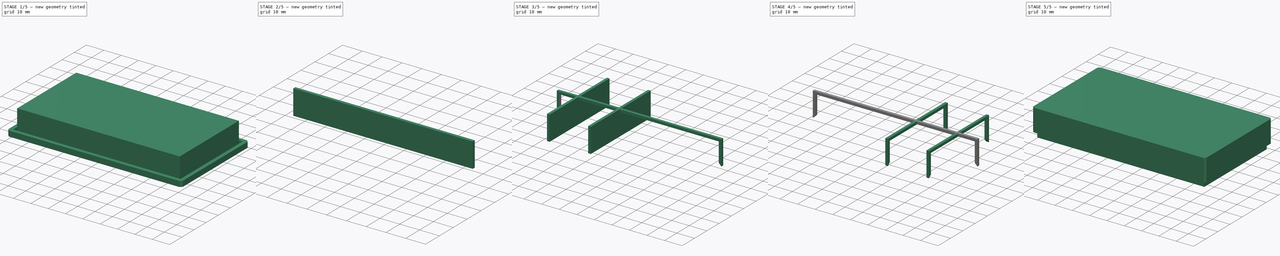
[diagram: build sequence overview — one tinted view per stage of 5, left to right]
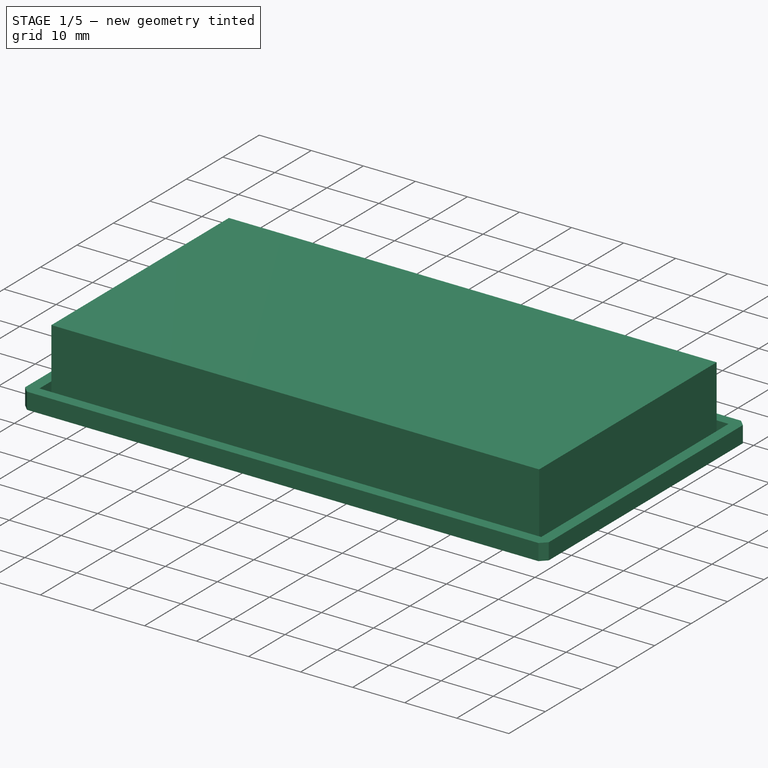
[diagram: stage 1 of 5 — iso view after this stage's code; geometry added in this stage tinted green]
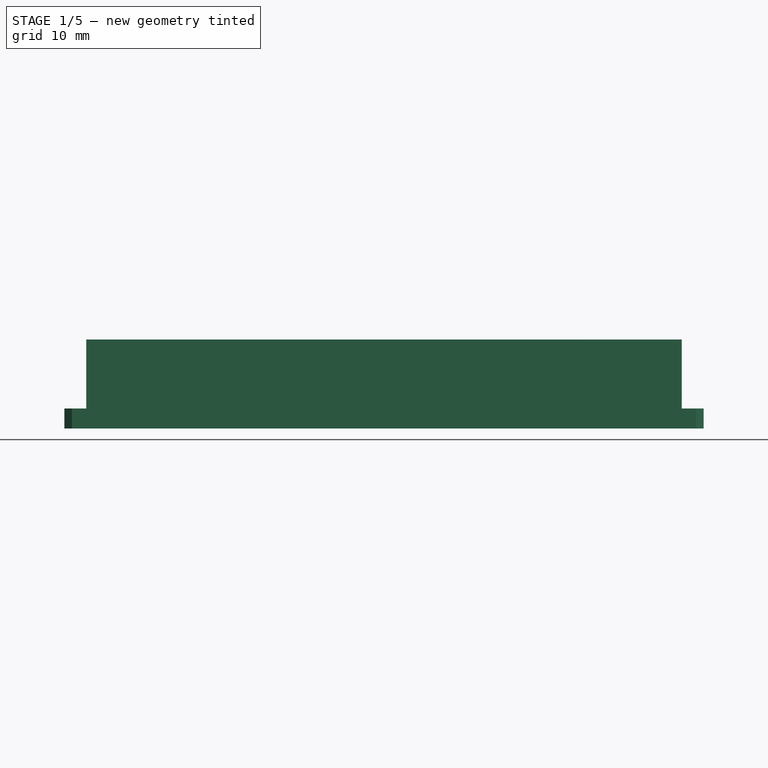
[diagram: stage 1 of 5 — front view after this stage's code; geometry added in this stage tinted green]
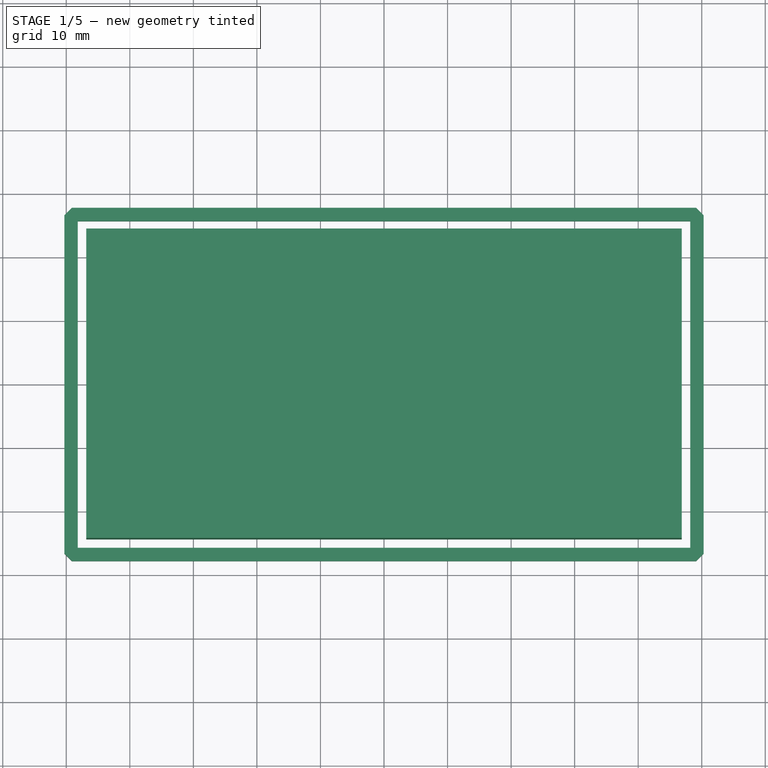
[diagram: stage 1 of 5 — top view after this stage's code; geometry added in this stage tinted green]
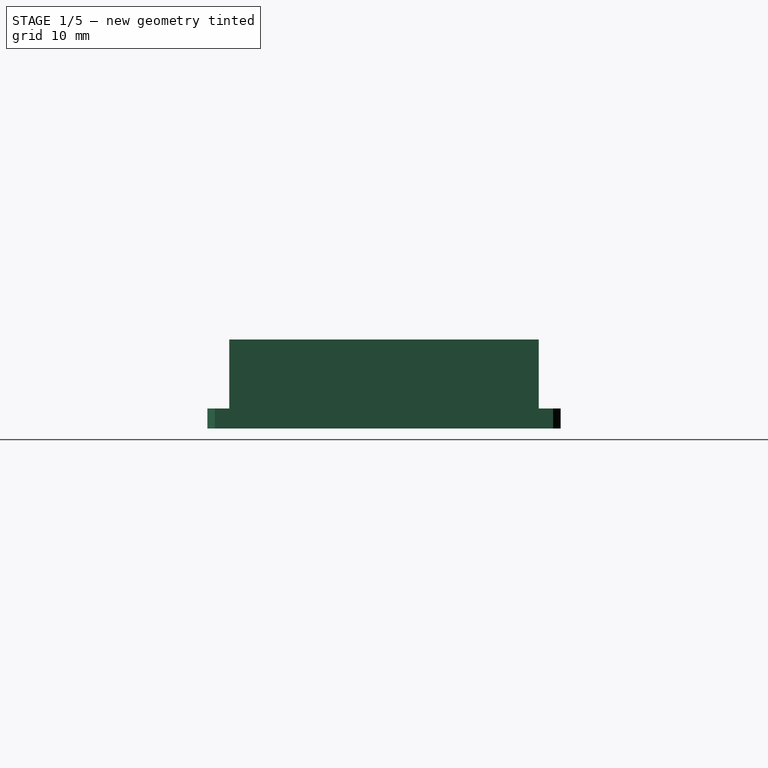
[diagram: stage 1 of 5 — right view after this stage's code; geometry added in this stage tinted green]
FCSTD DOCUMENT  (FreeCAD 0.20R29410 (Git))
Label: ShellB
License: All rights reserved
LicenseURL: http://en.wikipedia.org/wiki/All_rights_reserved
objects: Part::Extrusion×7, Sketcher::SketchObject×6, Part::Cut×4, Part::Fuse×3, Part::Chamfer×2, Part::Feature×1, PartDesign::SubShapeBinder×1, Part::Mirroring×1, PartDesign::CoordinateSystem×1, App::Part×1
note: 26 computed .brp shape members not serialized (recipe doc carries the construction recipe); baked Part::Feature solids carry a one-line shape summary decoded from their .brp
EXTERNAL_REF file=ShellA.FCStd obj=Body

FEATURE [Part::Feature] Face
  shape: bbox 100 x 55 x 0.002 mm, 1 faces, 0 solids (baked)
FEATURE [Part::Extrusion] Extrude
  Base = -> Face
  Dir = (0,0,1)
  DirMode = 0
  FaceMakerClass = Part::FaceMakerBullseye
  LengthFwd = 16
  LengthRev = 0
  Solid = false
  Symmetric = false
FEATURE [Sketcher::SketchObject] Sketch
  ExternalGeometry = -> [Extrude]
  FullyConstrained = true
  Placement = pos=(0,0,0) rot=(1,0,0;3.14159rad)
  sketch-geometry (5):
    g0: LineSegment StartX=-46.85 StartY=24.35 StartZ=0 EndX=-46.85 EndY=-24.35 EndZ=0
    g1: LineSegment StartX=-46.85 StartY=-24.35 StartZ=0 EndX=46.85 EndY=-24.35 EndZ=0
    g2: LineSegment StartX=46.85 StartY=-24.35 StartZ=0 EndX=46.85 EndY=24.35 EndZ=0
    g3: LineSegment StartX=46.85 StartY=24.35 StartZ=0 EndX=-46.85 EndY=24.35 EndZ=0
    g4: GeomPoint X=0 Y=0 Z=0
  constraints (12):
    c: Coincident(g0,g1)
    c: Coincident(g1,g2)
    c: Coincident(g2,g3)
    c: Coincident(g3,g0)
    c: Horizontal(g1)
    c: Horizontal(g3)
    c: Vertical(g0)
    c: Vertical(g2)
    c: Symmetric(g1,g0,g4)
    c: Coincident(g4,g-1)
    c: DistanceY(g0,g-4) = 3.15
    c: DistanceX(g-3,g0) = 3.15
FEATURE [Sketcher::SketchObject] Sketch001  label="ShellCutHeight"
  ExternalGeometry = -> [Extrude]
  FullyConstrained = true
  Placement = pos=(0,0,0) rot=(1,0,0;1.5708rad)
  sketch-geometry (2):
    g0: LineSegment StartX=0 StartY=0 StartZ=0 EndX=0 EndY=14 EndZ=0
    g1: GeomPoint X=0 Y=16 Z=0
  constraints (5):
    c: Coincident(g0,g-1)
    c: PointOnObject(g0,g-2)
    c: PointOnObject(g1,g-3)
    c: PointOnObject(g1,g-2)
    c: DistanceY(g0,g1) = 2
FEATURE [Part::Extrusion] Extrude001
  Base = -> Sketch
  Dir = (0,-3.1e-15,14)
  DirLink = -> Sketch001 [Edge1]
  DirMode = 1
  FaceMakerClass = Part::FaceMakerBullseye
  LengthFwd = 0
  LengthRev = 0
  Solid = true
  Symmetric = false
FEATURE [PartDesign::SubShapeBinder] Binder
  BindCopyOnChange = 0
  BindMode = 0
  ClaimChildren = false
  Context = -> Part [Binder.]
  Fuse = false
  MakeFace = true
  Offset = 0.3
  OffsetFill = false
  OffsetIntersection = false
  OffsetJoinType = 2
  OffsetOpenResult = false
  PartialLoad = false
  Relative = true
  Support = -> [<external ShellA.FCStd>#Body[Chamfer001.Face40]]
  _Version = 2
FEATURE [Part::Extrusion] Extrude002  label="CutoutEdging"
  Base = -> Binder
  Dir = (0,0,1)
  DirMode = 0
  FaceMakerClass = Part::FaceMakerBullseye
  LengthFwd = 3.15
  LengthRev = 0
  Solid = false
  Symmetric = false
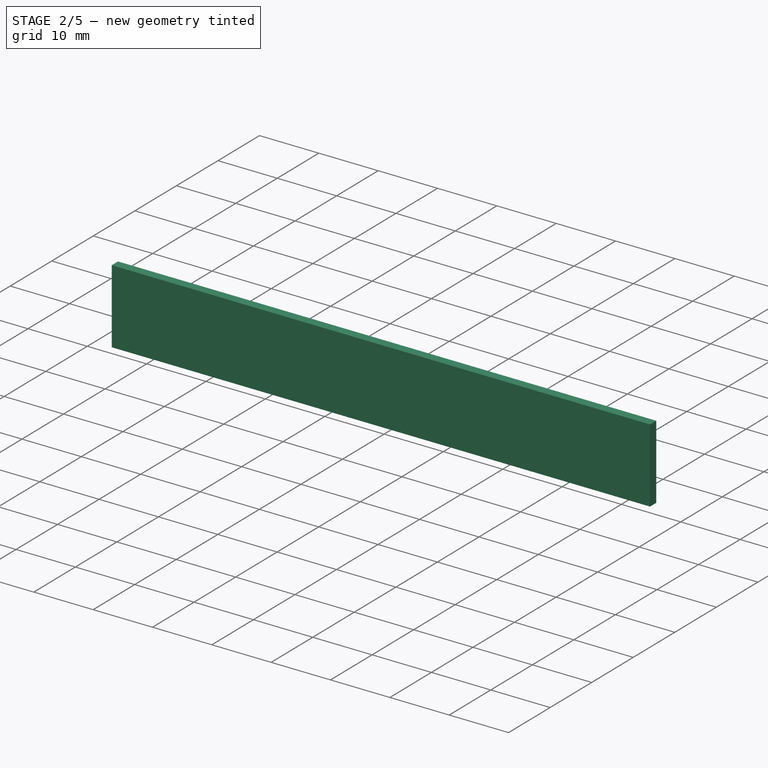
[diagram: stage 2 of 5 — iso view after this stage's code; geometry added in this stage tinted green]
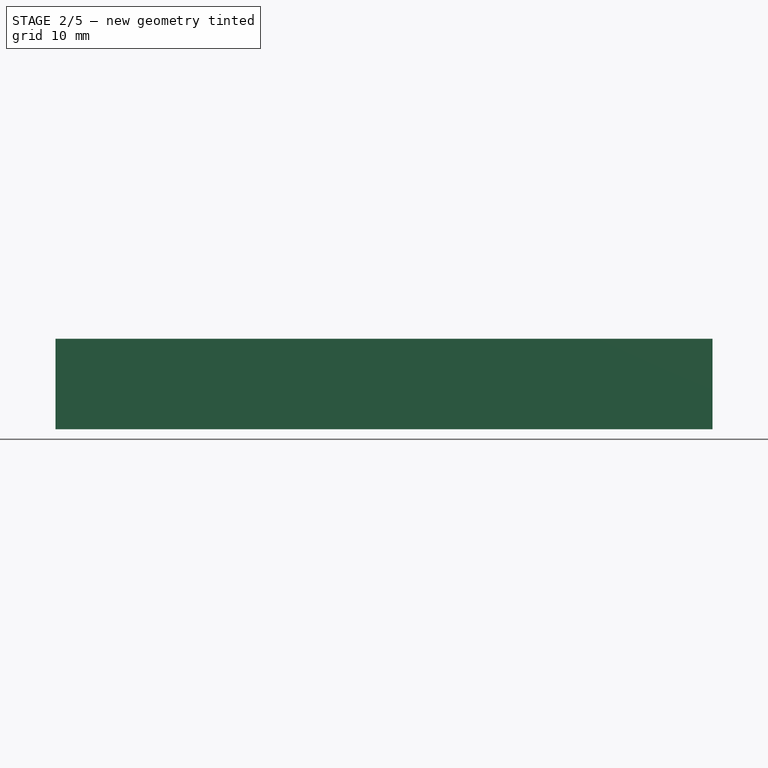
[diagram: stage 2 of 5 — front view after this stage's code; geometry added in this stage tinted green]
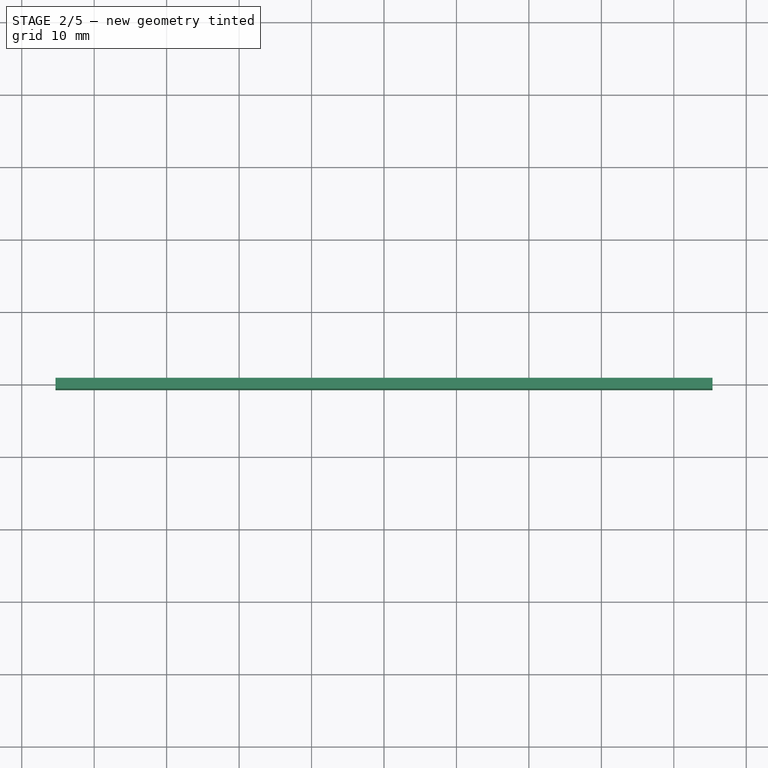
[diagram: stage 2 of 5 — top view after this stage's code; geometry added in this stage tinted green]
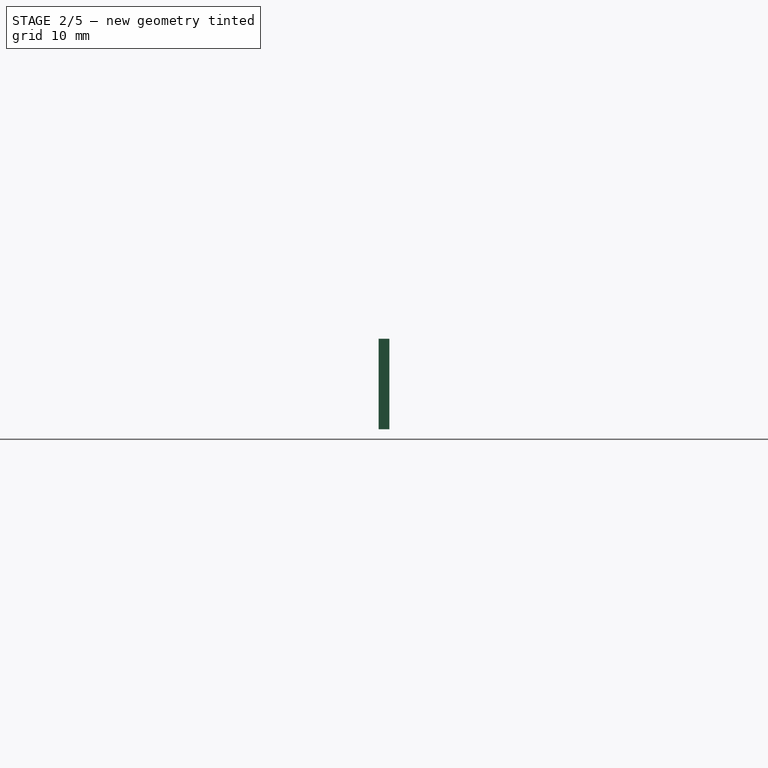
[diagram: stage 2 of 5 — right view after this stage's code; geometry added in this stage tinted green]
FEATURE [Part::Cut] Cut
  Base = -> Extrude
  Tool = -> Extrude001
FEATURE [Part::Cut] Cut001  label="MainShell"
  Base = -> Cut
  Tool = -> Extrude002
FEATURE [Sketcher::SketchObject] Sketch004
  ExternalGeometry = -> [Cut001]
  FullyConstrained = true
  Placement = pos=(0,0,0) rot=(1,0,0;3.14159rad)
  sketch-geometry (5):
    g0: LineSegment StartX=-46.85 StartY=0.75 StartZ=0 EndX=-46.85 EndY=-0.75 EndZ=0
    g1: LineSegment StartX=-46.85 StartY=-0.75 StartZ=0 EndX=46.85 EndY=-0.75 EndZ=0
    g2: LineSegment StartX=46.85 StartY=-0.75 StartZ=0 EndX=46.85 EndY=0.75 EndZ=0
    g3: LineSegment StartX=46.85 StartY=0.75 StartZ=0 EndX=-46.85 EndY=0.75 EndZ=0
    g4: GeomPoint X=0 Y=0 Z=0
  constraints (12):
    c: Coincident(g0,g1)
    c: Coincident(g1,g2)
    c: Coincident(g2,g3)
    c: Coincident(g3,g0)
    c: Horizontal(g1)
    c: Horizontal(g3)
    c: Vertical(g0)
    c: Vertical(g2)
    c: Symmetric(g1,g0,g4)
    c: Coincident(g4,g-1)
    c: PointOnObject(g1,g-4)
    c: DistanceY(g2,g2) = 1.5
FEATURE [Part::Extrusion] Extrude005
  Base = -> Sketch004
  Dir = (0,3.1e-15,14)
  DirLink = -> Sketch001 [Edge1]
  DirMode = 1
  FaceMakerClass = Part::FaceMakerBullseye
  LengthFwd = 0
  LengthRev = 0
  Solid = true
  Symmetric = false
FEATURE [Sketcher::SketchObject] Sketch005
  ExternalGeometry = -> [Extrude005]
  FullyConstrained = true
  Placement = pos=(0,0,0) rot=(1,0,0;3.14159rad)
  sketch-geometry (5):
    g0: LineSegment StartX=-45.35 StartY=0.75 StartZ=0 EndX=-45.35 EndY=-0.75 EndZ=0
    g1: LineSegment StartX=-45.35 StartY=-0.75 StartZ=0 EndX=45.35 EndY=-0.75 EndZ=0
    g2: LineSegment StartX=45.35 StartY=-0.75 StartZ=0 EndX=45.35 EndY=0.75 EndZ=0
    g3: LineSegment StartX=45.35 StartY=0.75 StartZ=0 EndX=-45.35 EndY=0.75 EndZ=0
    g4: GeomPoint X=0 Y=0 Z=0
  constraints (12):
    c: Coincident(g0,g1)
    c: Coincident(g1,g2)
    c: Coincident(g2,g3)
    c: Coincident(g3,g0)
    c: Horizontal(g1)
    c: Horizontal(g3)
    c: Vertical(g0)
    c: Vertical(g2)
    c: Symmetric(g1,g0,g4)
    c: Coincident(g4,g-1)
    c: PointOnObject(g1,g-4)
    c: DistanceX(g2,g-3) = 1.5
FEATURE [Part::Extrusion] Extrude006
  Base = -> Sketch005
  Dir = (0,0,1)
  DirMode = 0
  FaceMakerClass = Part::FaceMakerBullseye
  LengthFwd = 12.5
  LengthRev = 0
  Solid = true
  Symmetric = false
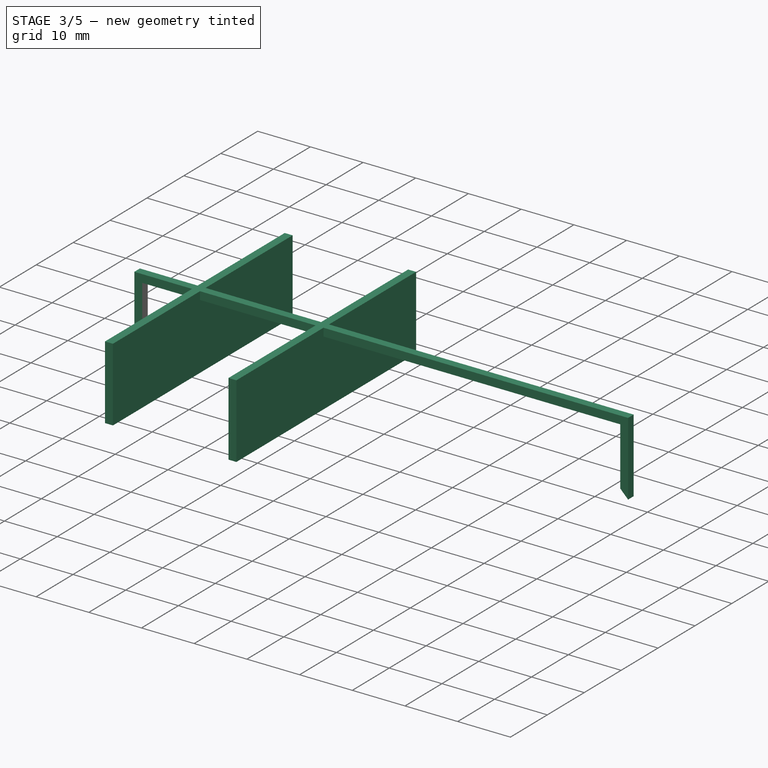
[diagram: stage 3 of 5 — iso view after this stage's code; geometry added in this stage tinted green]
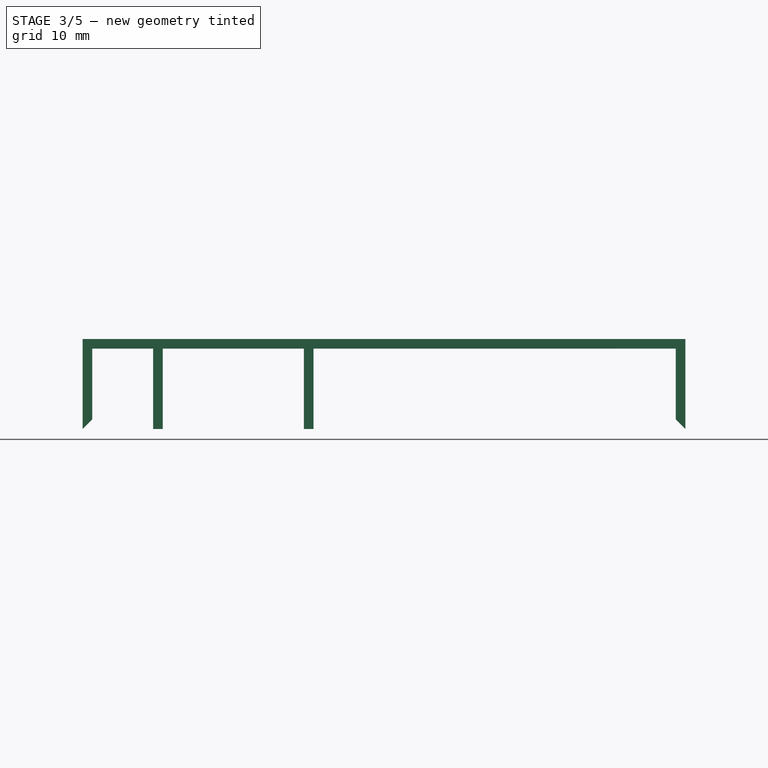
[diagram: stage 3 of 5 — front view after this stage's code; geometry added in this stage tinted green]
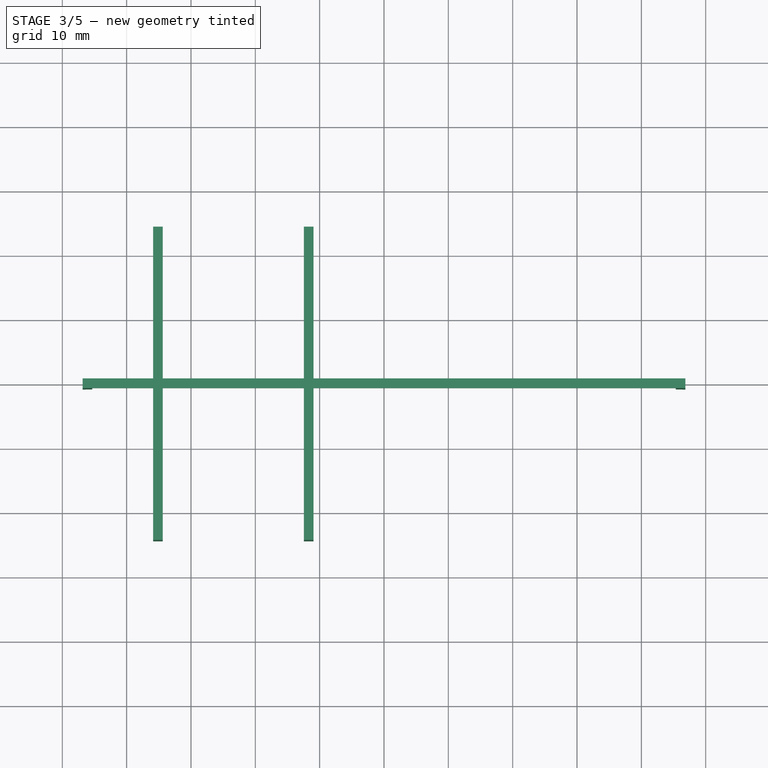
[diagram: stage 3 of 5 — top view after this stage's code; geometry added in this stage tinted green]
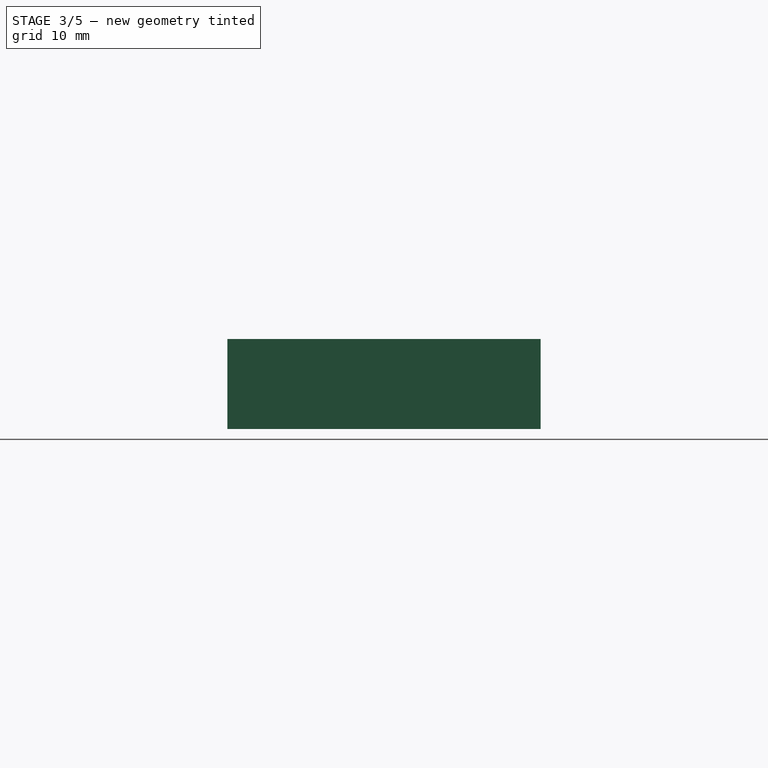
[diagram: stage 3 of 5 — right view after this stage's code; geometry added in this stage tinted green]
FEATURE [Sketcher::SketchObject] Sketch002  label="BaseRails"
  ExternalGeometry = -> [Cut001]
  FullyConstrained = true
  MapMode = 5
  Placement = pos=(0,0,14) rot=(1,0,0;3.14159rad)
  Support = -> [Cut001]
  sketch-geometry (12):
    g0: LineSegment StartX=-35.8875 StartY=24.35 StartZ=0 EndX=-34.3875 EndY=24.35 EndZ=0
    g1: LineSegment StartX=-34.3875 StartY=24.35 StartZ=0 EndX=-34.3875 EndY=-24.35 EndZ=0
    g2: LineSegment StartX=-34.3875 StartY=-24.35 StartZ=0 EndX=-35.8875 EndY=-24.35 EndZ=0
    g3: LineSegment StartX=-35.8875 StartY=-24.35 StartZ=0 EndX=-35.8875 EndY=24.35 EndZ=0
    g4: LineSegment StartX=-12.4625 StartY=24.35 StartZ=0 EndX=-10.9625 EndY=24.35 EndZ=0
    g5: LineSegment StartX=-10.9625 StartY=24.35 StartZ=0 EndX=-10.9625 EndY=-24.35 EndZ=0
    g6: LineSegment StartX=-10.9625 StartY=-24.35 StartZ=0 EndX=-12.4625 EndY=-24.35 EndZ=0
    g7: LineSegment StartX=-12.4625 StartY=-24.35 StartZ=0 EndX=-12.4625 EndY=24.35 EndZ=0
    g8: GeomPoint X=0 Y=24.35 Z=0
    g9: GeomPoint X=-23.425 Y=24.35 Z=0
    g10: GeomPoint X=-35.1375 Y=24.35 Z=0
    g11: GeomPoint X=-11.7125 Y=24.35 Z=0
  constraints (27):
    c: Coincident(g0,g1)
    c: Coincident(g1,g2)
    c: Coincident(g2,g3)
    c: Coincident(g3,g0)
    c: Horizontal(g0)
    c: Horizontal(g2)
    c: Vertical(g1)
    c: Vertical(g3)
    c: PointOnObject(g0,g-3)
    c: PointOnObject(g1,g-4)
    c: Coincident(g4,g5)
    c: Coincident(g5,g6)
    c: Coincident(g6,g7)
    c: Coincident(g7,g4)
    c: Horizontal(g4)
    c: Horizontal(g6)
    c: Vertical(g5)
    c: Vertical(g7)
    c: PointOnObject(g5,g-4)
    c: Equal(g6,g2)
    c: PointOnObject(g8,g-2)
    c: Symmetric(g8,g-3,g9)
    c: Symmetric(g4,g4,g11)
    c: Symmetric(g0,g0,g10)
    c: Symmetric(g-3,g9,g10)
    c: Symmetric(g8,g9,g11)
    c: DistanceX(g0,g0) = 1.5
FEATURE [Part::Extrusion] Extrude003
  Base = -> Sketch002
  Dir = (0,3.1e-15,14)
  DirLink = -> Sketch001 [Edge1]
  DirMode = 1
  FaceMakerClass = Part::FaceMakerBullseye
  LengthFwd = 0
  LengthRev = 0
  Reversed = true
  Solid = true
  Symmetric = false
FEATURE [Part::Cut] Cut003
  Base = -> Extrude005
  Tool = -> Extrude006
FEATURE [Part::Chamfer] Chamfer001  label="LengthRails"
  Base = -> Cut003
  Edges = 2 edges r=1.49: [Edge19,Edge21]
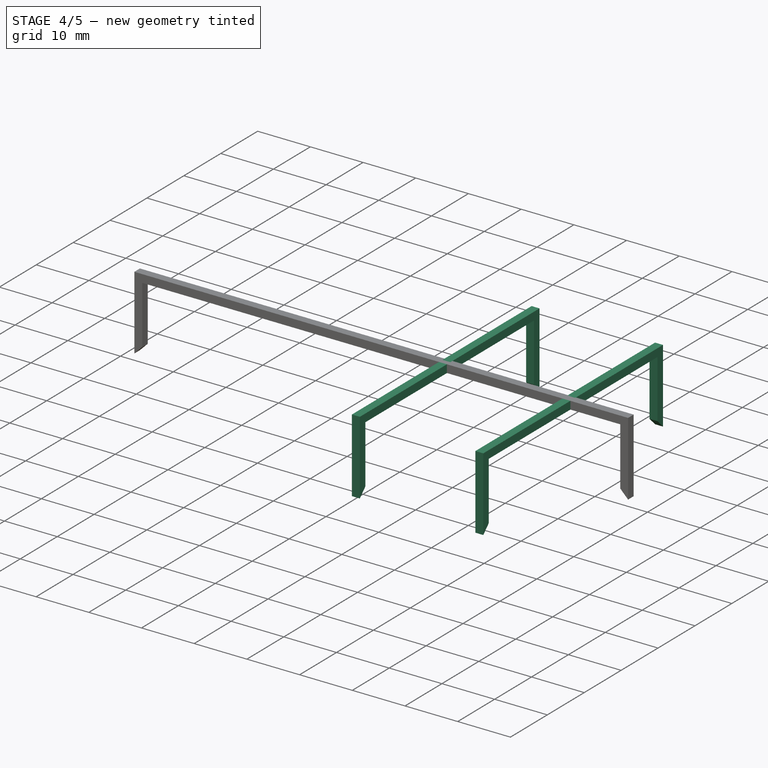
[diagram: stage 4 of 5 — iso view after this stage's code; geometry added in this stage tinted green]
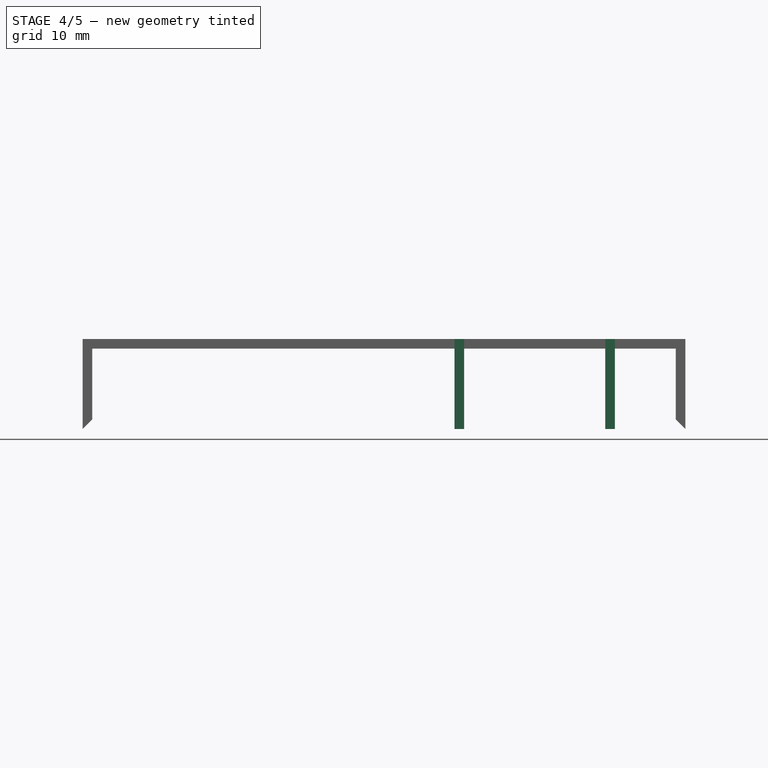
[diagram: stage 4 of 5 — front view after this stage's code; geometry added in this stage tinted green]
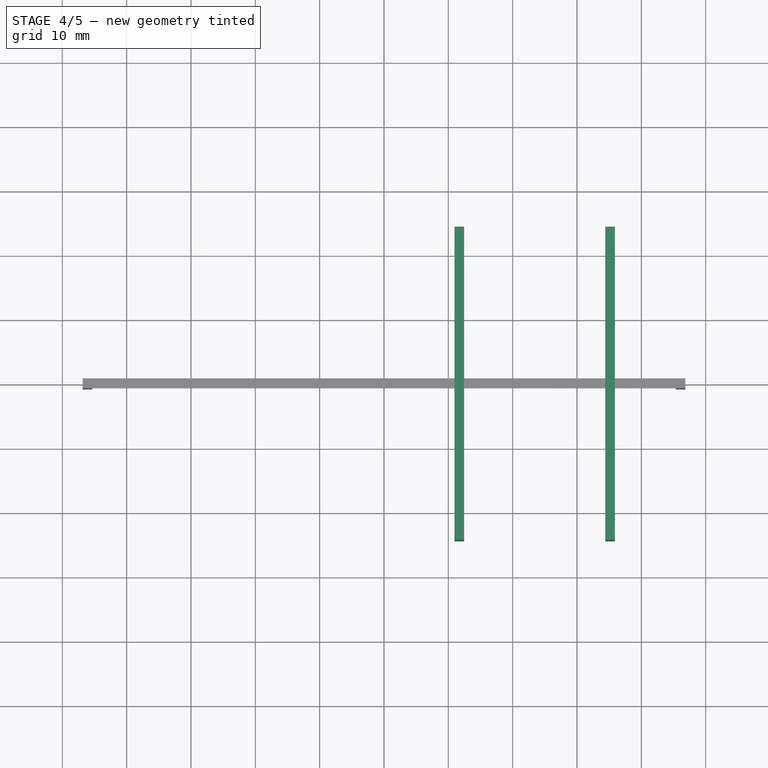
[diagram: stage 4 of 5 — top view after this stage's code; geometry added in this stage tinted green]
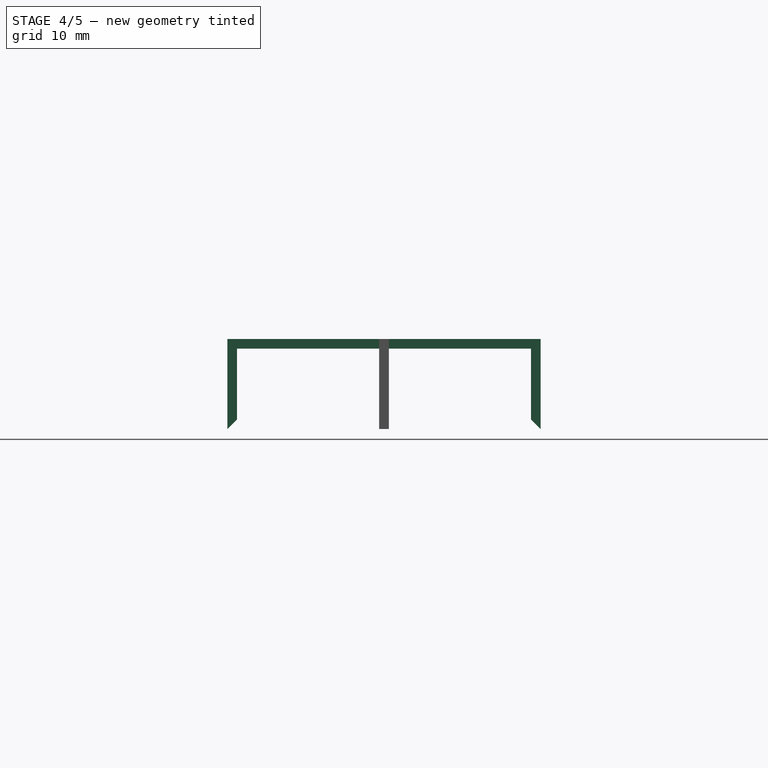
[diagram: stage 4 of 5 — right view after this stage's code; geometry added in this stage tinted green]
FEATURE [Sketcher::SketchObject] Sketch003
  ExternalGeometry = -> [Extrude003]
  FullyConstrained = true
  Placement = pos=(0,0,0) rot=(1,0,0;3.14159rad)
  sketch-geometry (8):
    g0: LineSegment StartX=-35.8875 StartY=22.85 StartZ=0 EndX=-34.3875 EndY=22.85 EndZ=0
    g1: LineSegment StartX=-34.3875 StartY=22.85 StartZ=0 EndX=-34.3875 EndY=-22.85 EndZ=0
    g2: LineSegment StartX=-34.3875 StartY=-22.85 StartZ=0 EndX=-35.8875 EndY=-22.85 EndZ=0
    g3: LineSegment StartX=-35.8875 StartY=-22.85 StartZ=0 EndX=-35.8875 EndY=22.85 EndZ=0
    g4: LineSegment StartX=-12.4625 StartY=22.85 StartZ=0 EndX=-10.9625 EndY=22.85 EndZ=0
    g5: LineSegment StartX=-10.9625 StartY=22.85 StartZ=0 EndX=-10.9625 EndY=-22.85 EndZ=0
    g6: LineSegment StartX=-10.9625 StartY=-22.85 StartZ=0 EndX=-12.4625 EndY=-22.85 EndZ=0
    g7: LineSegment StartX=-12.4625 StartY=-22.85 StartZ=0 EndX=-12.4625 EndY=22.85 EndZ=0
  constraints (23):
    c: Coincident(g0,g1)
    c: Coincident(g1,g2)
    c: Coincident(g2,g3)
    c: Coincident(g3,g0)
    c: Horizontal(g0)
    c: Horizontal(g2)
    c: Vertical(g1)
    c: PointOnObject(g0,g-3)
    c: PointOnObject(g1,g-4)
    c: Symmetric(g2,g0,g-1)
    c: Coincident(g4,g5)
    c: Coincident(g5,g6)
    c: Coincident(g6,g7)
    c: Coincident(g7,g4)
    c: Horizontal(g4)
    c: Horizontal(g6)
    c: Vertical(g5)
    c: Vertical(g7)
    c: PointOnObject(g4,g-5)
    c: PointOnObject(g5,g-6)
    c: Horizontal(g6,g1)
    c: Horizontal(g4,g0)
    c: DistanceY(g0,g-4) = 1.5
FEATURE [Part::Extrusion] Extrude004
  Base = -> Sketch003
  Dir = (0,0,1)
  DirMode = 0
  FaceMakerClass = Part::FaceMakerBullseye
  LengthFwd = 12.5
  LengthRev = 0
  Solid = true
  Symmetric = false
FEATURE [Part::Cut] Cut002  label="RailsLeft"
  Base = -> Extrude003
  Tool = -> Extrude004
FEATURE [Part::Chamfer] Chamfer  label="RailsLeft001"
  Base = -> Cut002
  Edges = 4 edges r=1.49: [Edge20,Edge23,Edge44,Edge47]
FEATURE [Part::Mirroring] Part__Mirroring  label="RailsRight"
  Base = (0,0,0)
  Normal = (1,0,0)
  Source = -> Chamfer
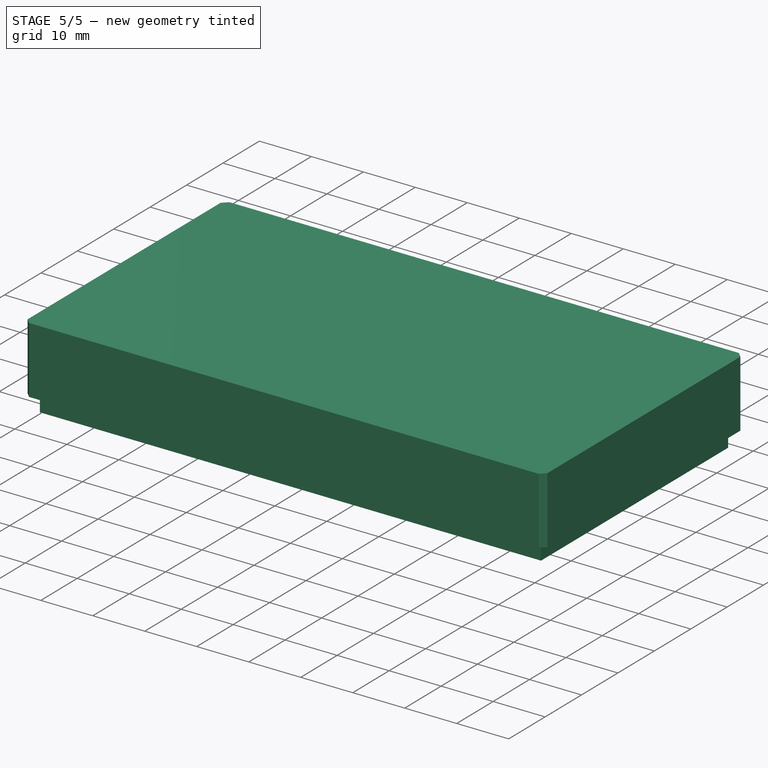
[diagram: stage 5 of 5 — iso view after this stage's code; geometry added in this stage tinted green]
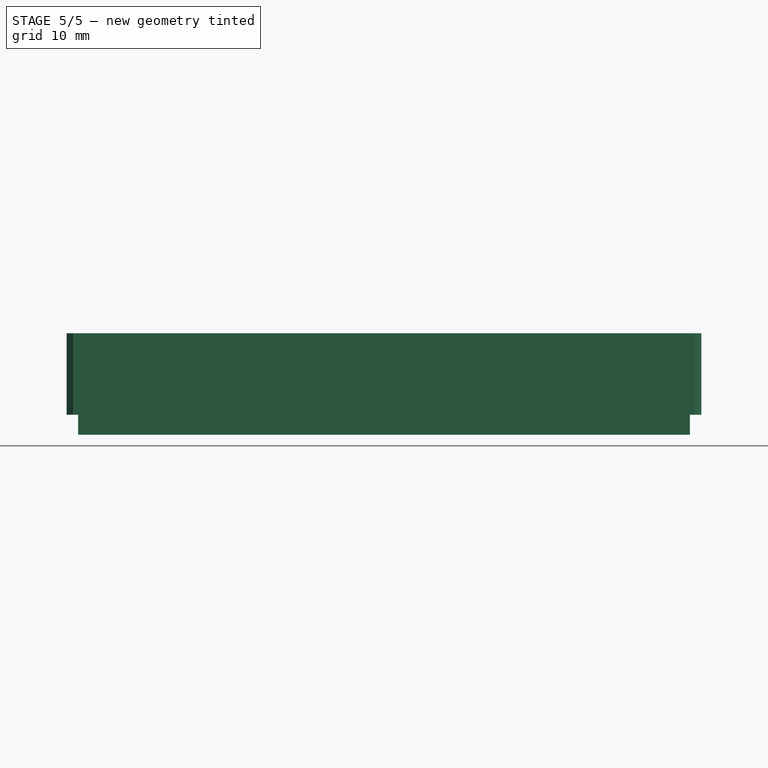
[diagram: stage 5 of 5 — front view after this stage's code; geometry added in this stage tinted green]
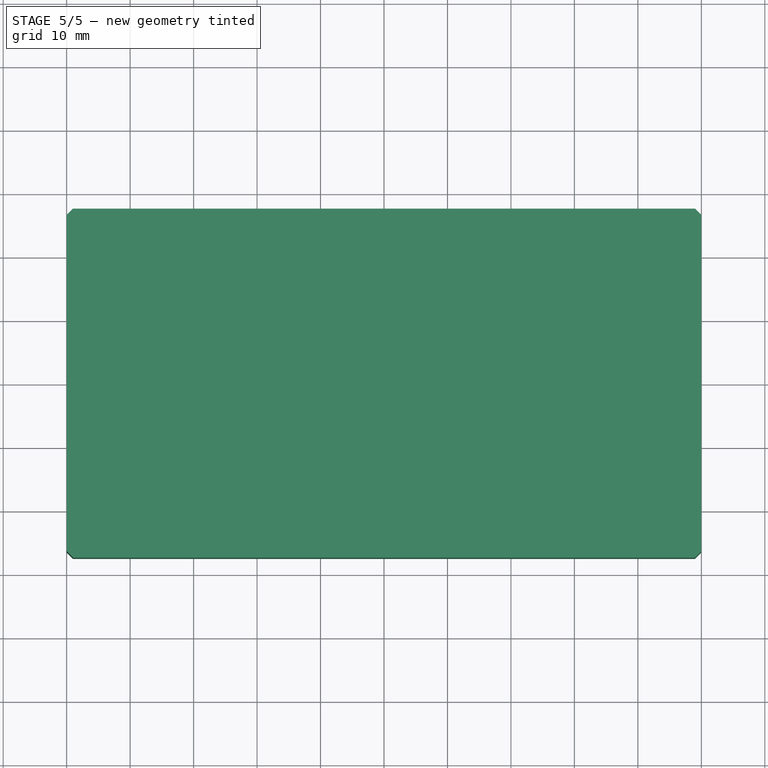
[diagram: stage 5 of 5 — top view after this stage's code; geometry added in this stage tinted green]
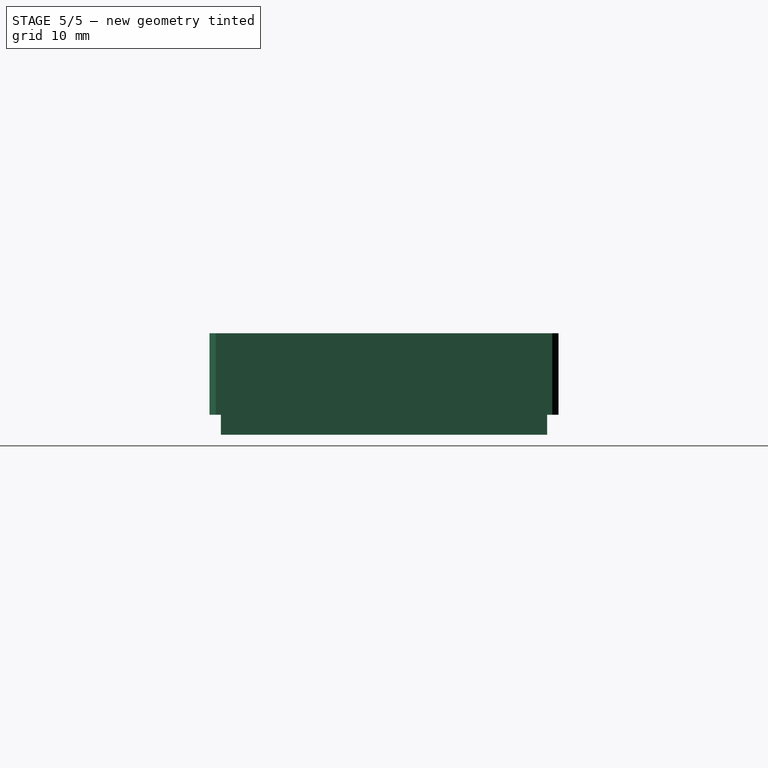
[diagram: stage 5 of 5 — right view after this stage's code; geometry added in this stage tinted green]
FEATURE [Part::Fuse] Fusion  label="WidthRails"
  Base = -> Chamfer
  Tool = -> Part__Mirroring
FEATURE [Part::Fuse] Fusion001  label="Rails"
  Base = -> Fusion
  Tool = -> Chamfer001
FEATURE [Part::Fuse] Fusion002
  Base = -> Cut001
  Refine = true
  Tool = -> Fusion001
FEATURE [PartDesign::CoordinateSystem] ShellB_LCS
  AttacherType = Attacher::AttachEngine3D
FEATURE [App::Part] Part  label="ShellB_Part"
  Group = -> [Sketch004,Extrude002,Cut002,Binder,Sketch001,Extrude003,Cut003,Chamfer001,Extrude001,Extrude004,Fusion,Extrude005,Sketch,Part__Mirroring,Extrude006,Sketch003,Cut001,Chamfer,Sketch005,Cut,Fusion001,Extrude,Sketch002,Face,Fusion002,ShellB_LCS]
  Origin = -> Origin
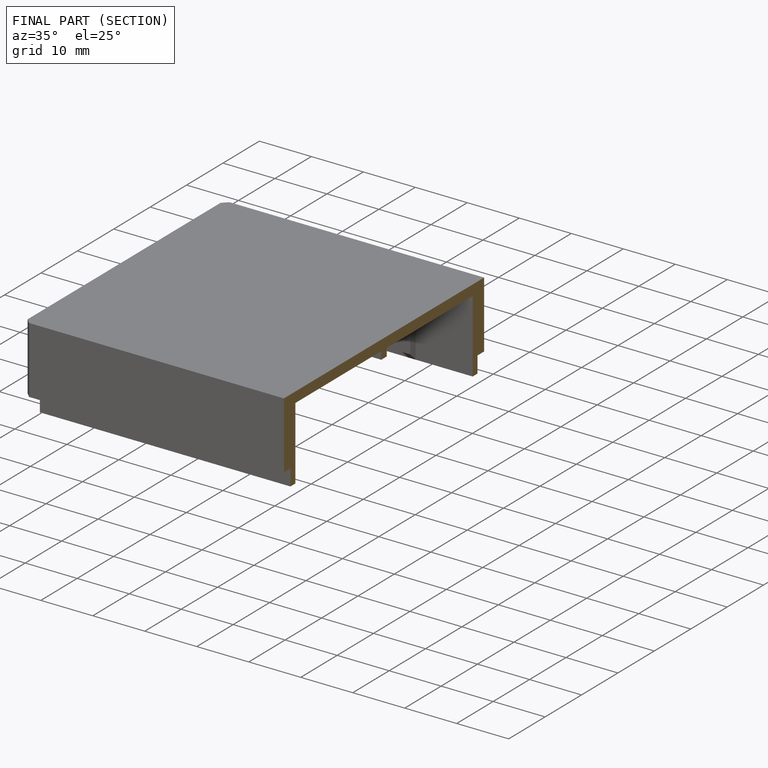
[diagram: finished part — half-section view (interior)]
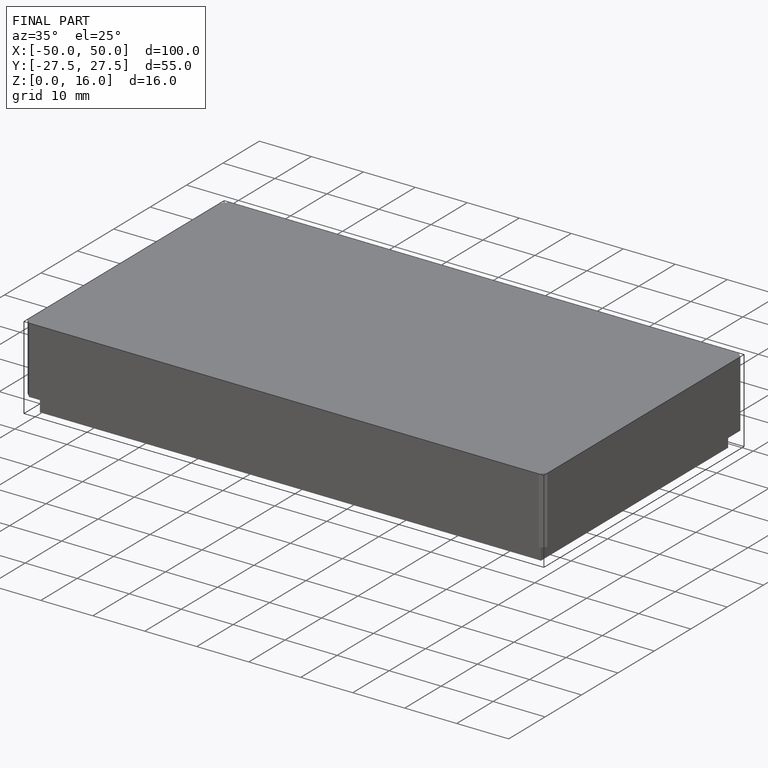
[diagram: finished part — iso view with bounding-box wireframe]
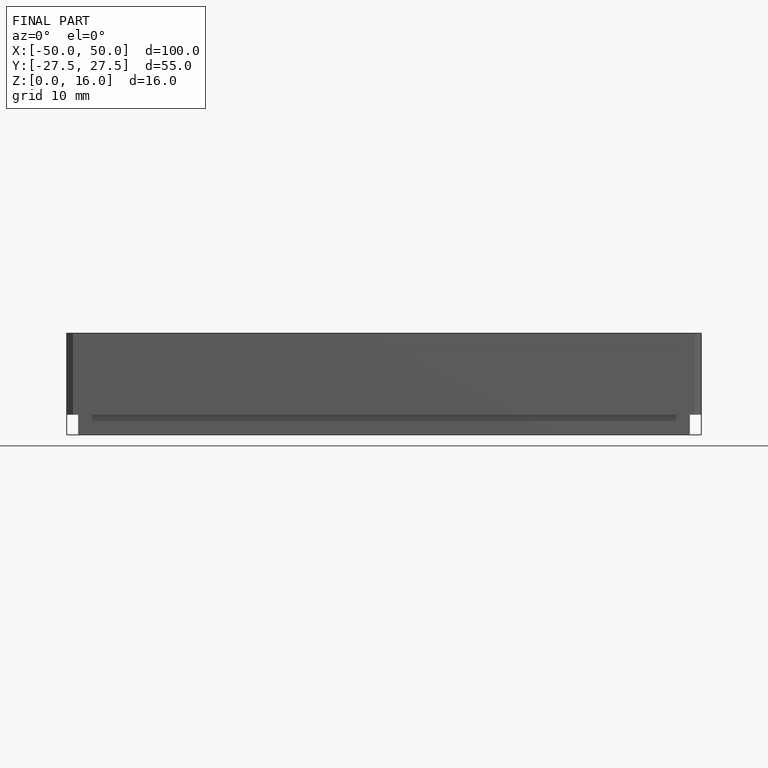
[diagram: finished part — front view with bounding-box wireframe]
